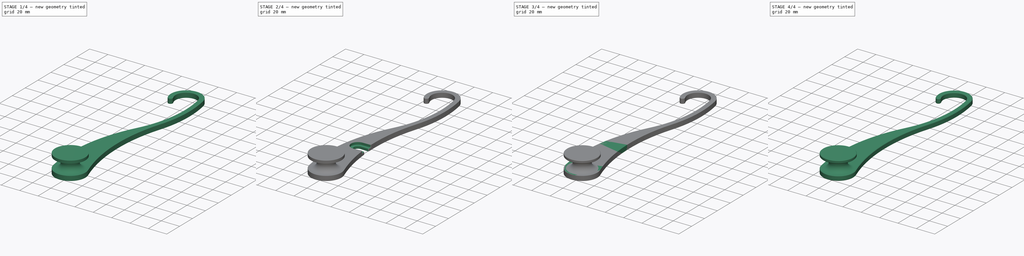
[diagram: build sequence overview — one tinted view per stage of 4, left to right]
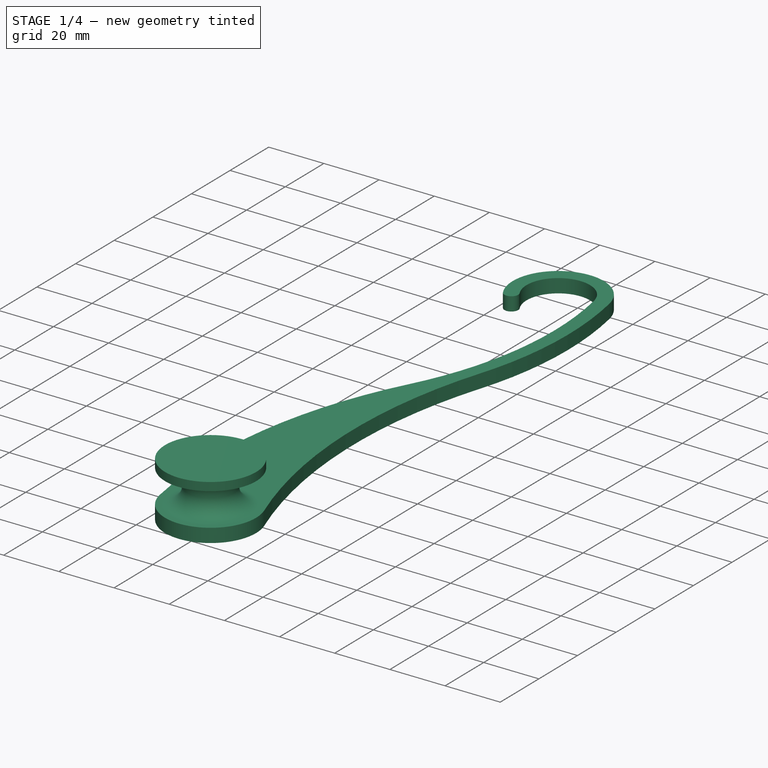
[diagram: stage 1 of 4 — iso view after this stage's code; geometry added in this stage tinted green]
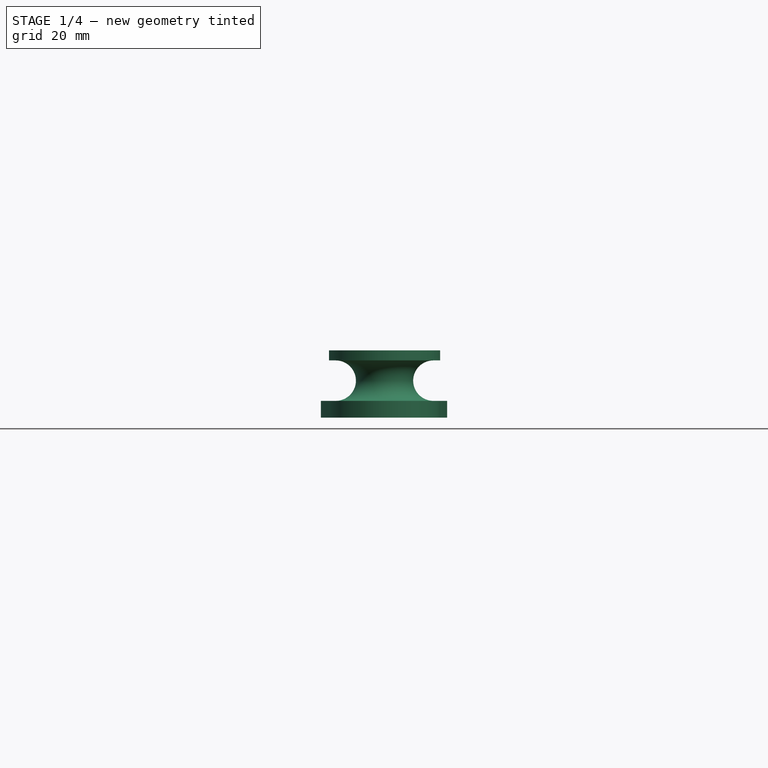
[diagram: stage 1 of 4 — front view after this stage's code; geometry added in this stage tinted green]
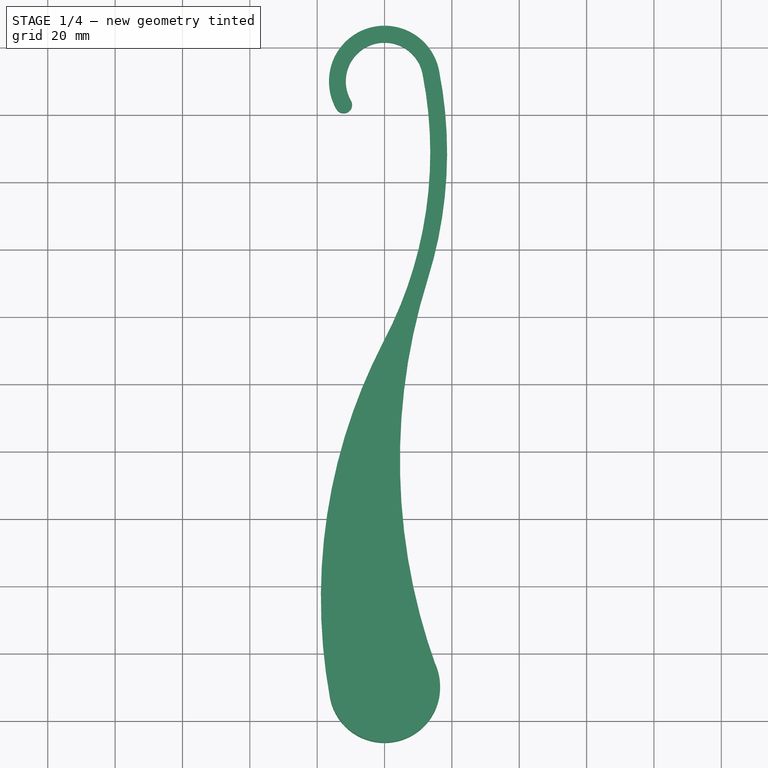
[diagram: stage 1 of 4 — top view after this stage's code; geometry added in this stage tinted green]
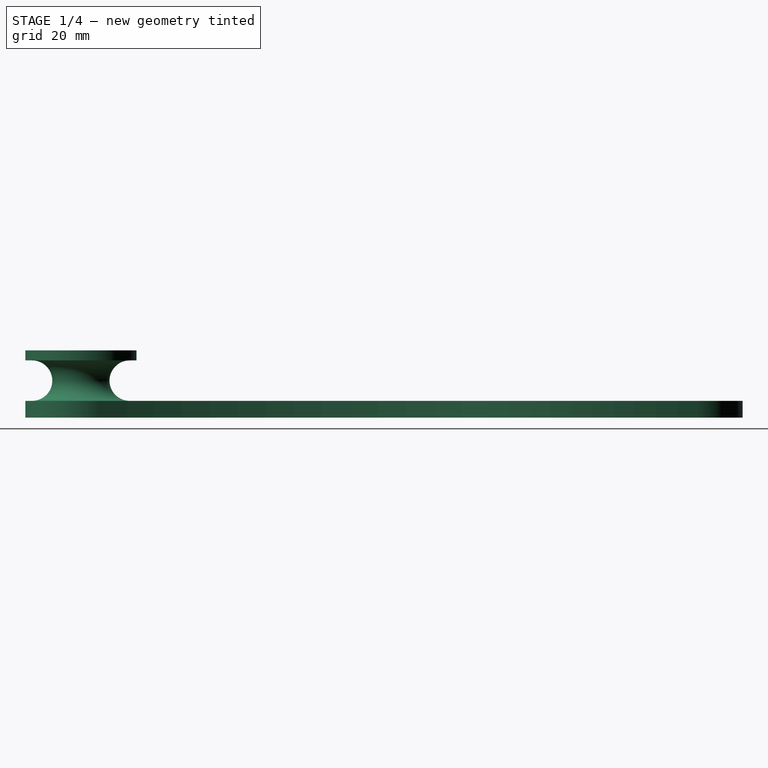
[diagram: stage 1 of 4 — right view after this stage's code; geometry added in this stage tinted green]
FCSTD DOCUMENT  (FreeCAD 1.1R38843 (Git))
Label: shower hanger
License: All rights reserved
LicenseURL: http://en.wikipedia.org/wiki/All_rights_reserved
objects: Sketcher::SketchObject×8, PartDesign::Pad×4, PartDesign::Groove×2, PartDesign::Chamfer×2, PartDesign::Body×2, PartDesign::Pocket×2, PartDesign::Fillet×1
note: 51 computed .brp shape members not serialized (recipe doc carries the construction recipe); baked Part::Feature solids carry a one-line shape summary decoded from their .brp

FEATURE [PartDesign::Body] Body  label="original"
  AllowCompound = false
  Group = -> [Sketch,Pad,Sketch001,Pad001,Sketch002,Groove,Chamfer]
  Origin = -> Origin
  Tip = -> Chamfer
FEATURE [Sketcher::SketchObject] Sketch003
  ArcFitTolerance = 1e-06
  AttachmentSupport = -> [XY_Plane001]
  FullyConstrained = true
  MakeInternals = false
  MapMode = 5
  sketch-geometry (12):
    g0: LineSegment [constr] StartX=0 StartY=90 StartZ=0 EndX=0 EndY=-90 EndZ=0
    g1: ArcOfCircle CenterX=0 CenterY=90 CenterZ=0 NormalX=0 NormalY=0 NormalZ=1 AngleXU=0 Radius=11.5 StartAngle=0.195596 EndAngle=3.66519
    g2: ArcOfCircle CenterX=0 CenterY=90 CenterZ=0 NormalX=0 NormalY=0 NormalZ=1 AngleXU=0 Radius=16.5 StartAngle=0.195596 EndAngle=3.66519
    g3: ArcOfCircle CenterX=-106.824 CenterY=68.835 CenterZ=0 NormalX=0 NormalY=0 NormalZ=1 AngleXU=0 Radius=120.401 StartAngle=5.80146 EndAngle=6.47878
    g4: ArcOfCircle CenterX=-106.824 CenterY=68.835 CenterZ=0 NormalX=0 NormalY=0 NormalZ=1 AngleXU=0 Radius=125.401 StartAngle=5.97919 EndAngle=6.47878
    g5: LineSegment [constr] StartX=0 StartY=90 StartZ=0 EndX=-14.2894 EndY=81.75 EndZ=0
    g6: LineSegment [constr] StartX=0 StartY=90 StartZ=0 EndX=16.1854 EndY=93.2068 EndZ=0
    g7: LineSegment [constr] StartX=-9.95929 StartY=84.25 StartZ=0 EndX=11.2807 EndY=92.235 EndZ=0
    g8: ArcOfCircle CenterX=-12.1244 CenterY=83 CenterZ=0 NormalX=0 NormalY=0 NormalZ=1 AngleXU=0 Radius=2.5 StartAngle=3.66519 EndAngle=6.80678
    g9: ArcOfCircle CenterX=146.097 CenterY=-63.3936 CenterZ=0 NormalX=0 NormalY=0 NormalZ=1 AngleXU=0 Radius=165 StartAngle=2.65987 EndAngle=3.32173
    g10: ArcOfCircle CenterX=184.573 CenterY=-22.583 CenterZ=0 NormalX=0 NormalY=0 NormalZ=1 AngleXU=0 Radius=180 StartAngle=2.83759 EndAngle=3.4918
    g11: ArcOfCircle CenterX=0 CenterY=-90 CenterZ=0 NormalX=0 NormalY=0 NormalZ=1 AngleXU=0 Radius=16.5 StartAngle=3.32173 EndAngle=6.63339
  constraints (29):
    c: DistanceY(g0,g0) = 180
    c: Diameter(g1) = 23
    c: Coincident(g1,g0)
    c: Coincident(g2,g0)
    c: Tangent(g1,g3) = -1.5708
    c: Tangent(g2,g4) = -1.5708
    c: Coincident(g5,g2)
    c: Coincident(g5,g0)
    c: Angle(g5,g0) = 1.0472
    c: Coincident(g6,g2)
    c: Coincident(g6,g0)
    c: Coincident(g7,g1)
    c: Coincident(g7,g1)
    c: Tangent(g8,g1) = 1.5708
    c: Tangent(g8,g2) = -1.5708
    c: Distance(g2,g1) = 5
    c: Coincident(g4,g3)
    c: Tangent(g9,g3) = 1.5708
    c: Tangent(g10,g4) = 1.5708
    c: Equal(g11,g2)
    c: Tangent(g11,g10) = 1.5708
    c: Tangent(g11,g9) = -1.5708
    c: Coincident(g11,g0)
    c: Symmetric(g0,g0,g-1)
    c: Diameter(g10) = 360
    c: Diameter(g9) = 330
    c: Distance(g3,g1) = 80
    c: Distance(g4,g2) = 62
    c: PointOnObject(g0,g-2)
FEATURE [PartDesign::Pad] Pad002
  Direction = (0,0,1)
  Length = 5
  Length2 = 10
  Profile = -> Sketch003
  ReferenceAxis = -> Sketch003 [N_Axis]
  Refine = true
  Suppressed = false
  Type = 0
FEATURE [Sketcher::SketchObject] Sketch004
  ArcFitTolerance = 1e-06
  AttachmentSupport = -> [Pad002]
  ExternalGeometry = -> [Pad002]
  FullyConstrained = true
  MakeInternals = false
  MapMode = 5
  Placement = pos=(0,0,5) rot=(0,0,1;0rad)
  sketch-geometry (1):
    g0: Circle CenterX=0 CenterY=-90 CenterZ=0 NormalX=0 NormalY=0 NormalZ=1 AngleXU=0 Radius=16.5
  constraints (2):
    c: Coincident(g0,g-3)
    c: PointOnObject(g-3,g0)
FEATURE [PartDesign::Pad] Pad003
  BaseFeature = -> Pad002
  Direction = (0,0,1)
  Length = 15
  Length2 = 10
  Profile = -> Sketch004
  ReferenceAxis = -> Sketch004 [N_Axis]
  Refine = true
  Suppressed = false
  Type = 0
FEATURE [Sketcher::SketchObject] Sketch005
  ArcFitTolerance = 1e-06
  AttachmentOffset = pos=(0,0,90) rot=(0,0,1;0rad)
  AttachmentSupport = -> [XZ_Plane001]
  ExternalGeometry = -> [Pad003]
  FullyConstrained = false
  MakeInternals = false
  MapMode = 5
  Placement = pos=(0,-90,2e-14) rot=(1,0,0;1.5708rad)
  sketch-geometry (6):
    g0: GeomPoint [constr] X=-16.5 Y=11 Z=0
    g1: GeomPoint [constr] X=-16.5 Y=5 Z=0
    g2: ArcOfCircle CenterX=-16.5 CenterY=11 CenterZ=0 NormalX=0 NormalY=0 NormalZ=1 AngleXU=0 Radius=6 StartAngle=1.5708 EndAngle=4.71239
    g3: ArcOfCircle CenterX=-14.5 CenterY=11 CenterZ=0 NormalX=0 NormalY=0 NormalZ=1 AngleXU=0 Radius=6 StartAngle=4.71239 EndAngle=7.85398
    g4: LineSegment StartX=-16.5 StartY=17 StartZ=0 EndX=-14.5 EndY=17 EndZ=0
    g5: LineSegment StartX=-16.5 StartY=5 StartZ=0 EndX=-14.5 EndY=5 EndZ=0
  constraints (12):
    c: Horizontal(g1,g-4)
    c: Vertical(g1,g-3)
    c: Vertical(g1,g0)
    c: Tangent(g2,g4) = 1.5708
    c: Tangent(g2,g5) = -1.5708
    c: Tangent(g3,g4) = 1.5708
    c: Tangent(g3,g5) = -1.5708
    c: Equal(g2,g3)
    c: Horizontal(g4)
    c: Diameter(g3) = 12
    c: DistanceX(g5,g5) = 2
    c: Coincident(g2,g1)
FEATURE [PartDesign::Groove] Groove001
  Angle = 360
  Angle2 = 60
  Axis = (0,2e-16,1)
  Base = (0,-90,2e-14)
  BaseFeature = -> Pad003
  Profile = -> Sketch005
  ReferenceAxis = -> Sketch005 [V_Axis]
  Refine = true
  Reversed = true
  Suppressed = false
  Type = 0
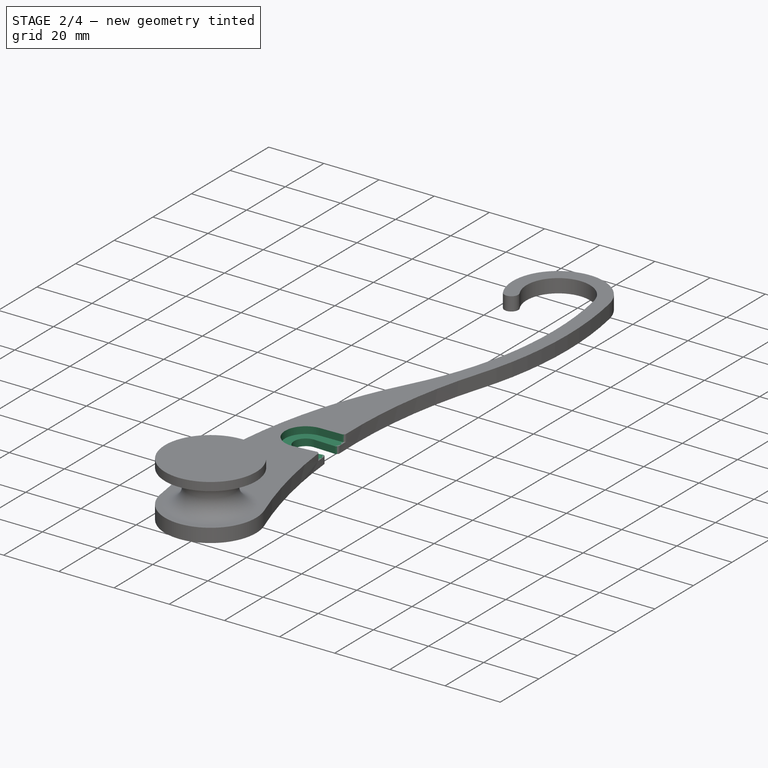
[diagram: stage 2 of 4 — iso view after this stage's code; geometry added in this stage tinted green]
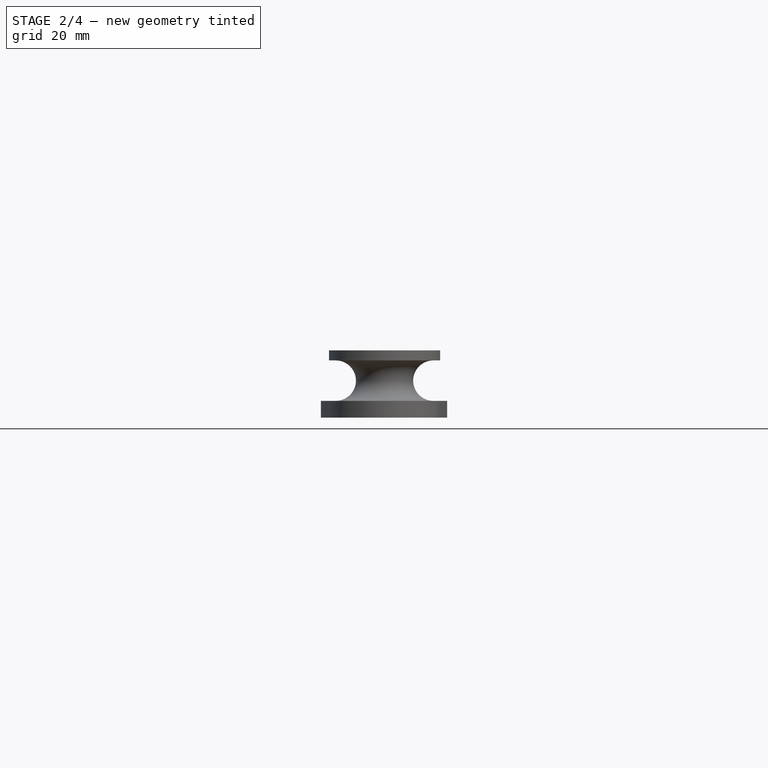
[diagram: stage 2 of 4 — front view after this stage's code; geometry added in this stage tinted green]
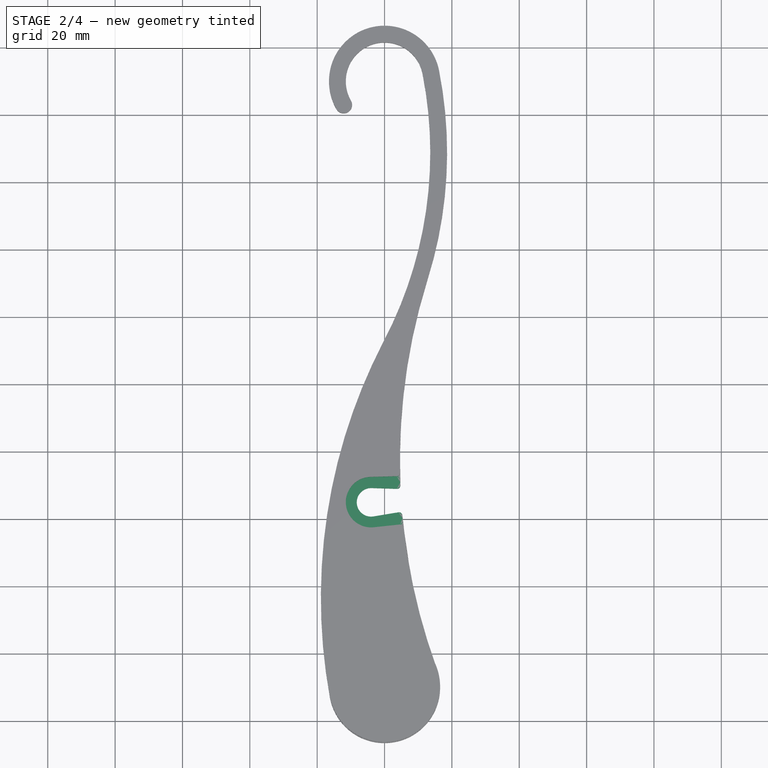
[diagram: stage 2 of 4 — top view after this stage's code; geometry added in this stage tinted green]
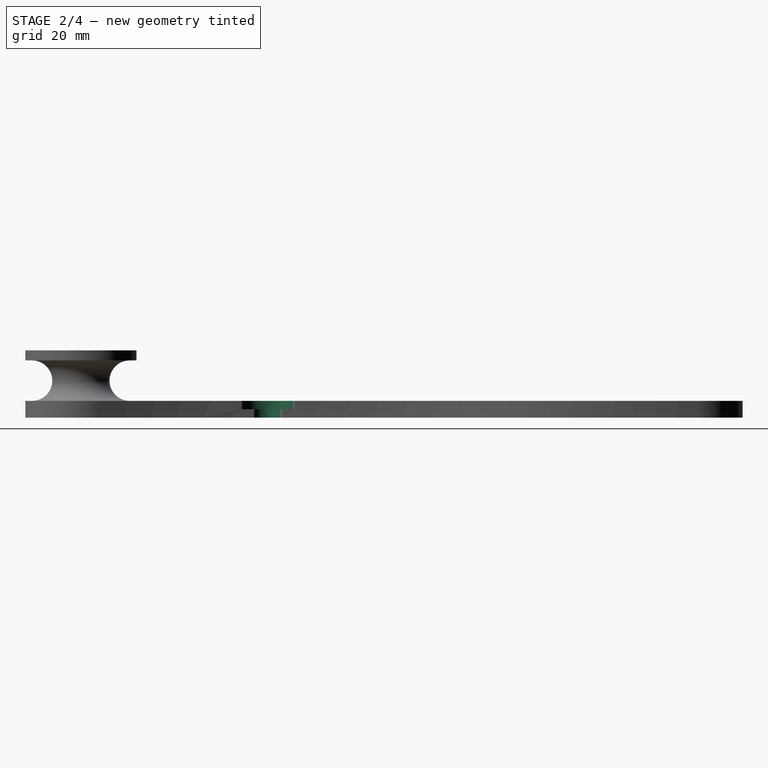
[diagram: stage 2 of 4 — right view after this stage's code; geometry added in this stage tinted green]
FEATURE [Sketcher::SketchObject] Sketch006
  ArcFitTolerance = 1e-06
  AttachmentSupport = -> [Groove001]
  ExternalGeometry = -> [Groove001]
  FullyConstrained = true
  MakeInternals = false
  MapMode = 5
  Placement = pos=(0,0,5) rot=(0,0,1;0rad)
  sketch-geometry (5):
    g0: ArcOfCircle CenterX=-4 CenterY=-35 CenterZ=0 NormalX=0 NormalY=0 NormalZ=1 AngleXU=0 Radius=7.5 StartAngle=1.59685 EndAngle=4.81784
    g1: ArcOfCircle CenterX=13.9753 CenterY=-33.8164 CenterZ=0 NormalX=0 NormalY=0 NormalZ=1 AngleXU=0 Radius=6.78508 StartAngle=4.81784 EndAngle=7.88004
    g2: LineSegment StartX=-4.19539 StartY=-27.5025 StartZ=0 EndX=13.7985 EndY=-27.0336 EndZ=0
    g3: LineSegment StartX=-3.2106 StartY=-42.4583 StartZ=0 EndX=14.6894 EndY=-40.5638 EndZ=0
    g4: ArcOfCircle [constr] CenterX=-4 CenterY=-35 CenterZ=0 NormalX=0 NormalY=0 NormalZ=1 AngleXU=0 Radius=7.5 StartAngle=4.81784 EndAngle=7.88004
  constraints (13):
    c: Tangent(g0,g2) = 1.5708
    c: Tangent(g0,g3) = -1.5708
    c: Tangent(g1,g2) = 1.5708
    c: Tangent(g1,g3) = -1.5708
    c: Radius(g0) = 7.5
    c: Perpendicular(g-4,g2)
    c: Perpendicular(g-4,g3)
    c: Distance(g3) = 18
    c: DistanceY(g0,g-1) = 35
    c: Coincident(g4,g0)
    c: Coincident(g4,g0)
    c: PointOnObject(g4,g3)
    c: DistanceX(g0,g-1) = 4
FEATURE [PartDesign::Pocket] Pocket
  BaseFeature = -> Groove001
  Direction = (0,0,-1)
  Length = 2.5
  Length2 = 5
  Profile = -> Sketch006
  ReferenceAxis = -> Sketch006 [N_Axis]
  Refine = true
  Suppressed = false
  Type = 0
FEATURE [Sketcher::SketchObject] Sketch007
  ArcFitTolerance = 1e-06
  AttachmentSupport = -> [Pocket]
  ExternalGeometry = -> [Pocket]
  FullyConstrained = true
  MakeInternals = false
  MapMode = 5
  Placement = pos=(0,0,2.5) rot=(0,0,1;0rad)
  sketch-geometry (5):
    g0: ArcOfCircle CenterX=-4 CenterY=-35 CenterZ=0 NormalX=0 NormalY=0 NormalZ=1 AngleXU=0 Radius=4.25 StartAngle=1.53963 EndAngle=4.87506
    g1: ArcOfCircle CenterX=14.0458 CenterY=-33.8117 CenterZ=0 NormalX=0 NormalY=0 NormalZ=1 AngleXU=0 Radius=2.5 StartAngle=4.87506 EndAngle=7.82282
    g2: LineSegment StartX=-3.86757 StartY=-30.7521 StartZ=0 EndX=14.1237 EndY=-31.3129 EndZ=0
    g3: LineSegment StartX=-3.3117 StartY=-39.1939 StartZ=0 EndX=14.4507 EndY=-36.2787 EndZ=0
    g4: LineSegment [constr] StartX=14.0458 StartY=-33.8117 StartZ=0 EndX=-4 EndY=-35 EndZ=0
  constraints (11):
    c: Tangent(g0,g2) = 1.5708
    c: Tangent(g0,g3) = -1.5708
    c: Tangent(g1,g2) = 1.5708
    c: Tangent(g1,g3) = -1.5708
    c: Coincident(g0,g-3)
    c: Diameter(g0) = 8.5
    c: Distance(g3) = 18
    c: Diameter(g1) = 5
    c: Coincident(g4,g1)
    c: Coincident(g4,g0)
    c: Perpendicular(g-4,g4)
FEATURE [PartDesign::Pocket] Pocket001
  BaseFeature = -> Pocket
  Direction = (0,0,-1)
  Length = 5
  Length2 = 5
  Profile = -> Sketch007
  ReferenceAxis = -> Sketch007 [N_Axis]
  Refine = true
  Suppressed = false
  Type = 0
FEATURE [PartDesign::Fillet] Fillet
  Base = -> Pocket001 [Edge36,Edge44,Edge38,Edge45]
  BaseFeature = -> Pocket001
  Radius = 1
  Refine = true
  SupportTransform = false
  Suppressed = false
  UseAllEdges = false
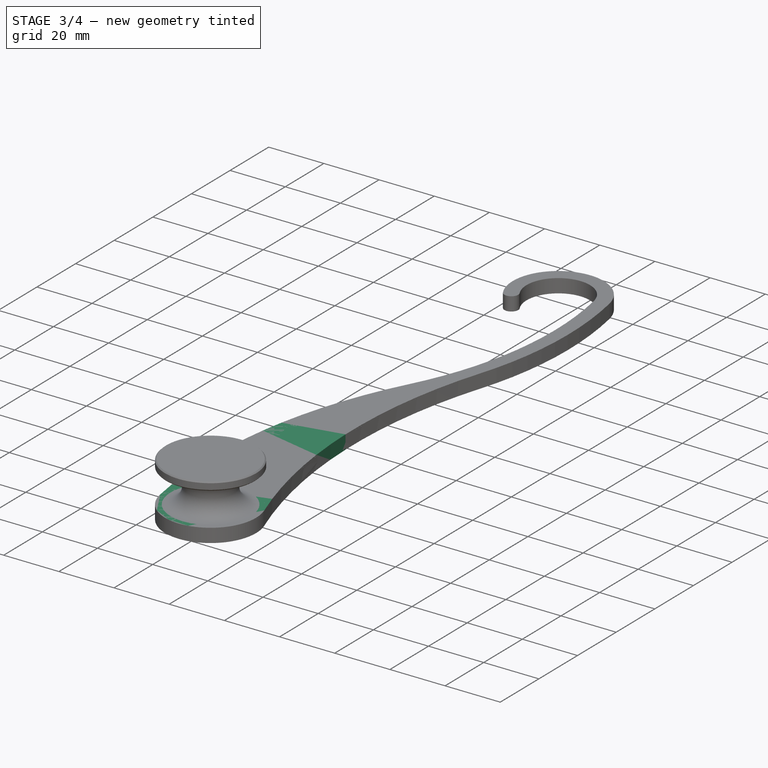
[diagram: stage 3 of 4 — iso view after this stage's code; geometry added in this stage tinted green]
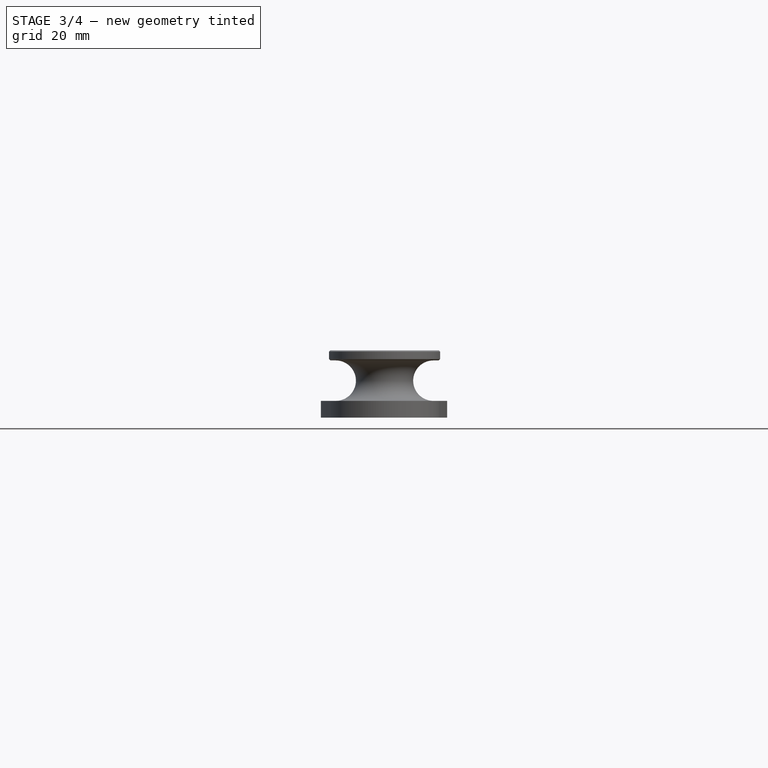
[diagram: stage 3 of 4 — front view after this stage's code; geometry added in this stage tinted green]
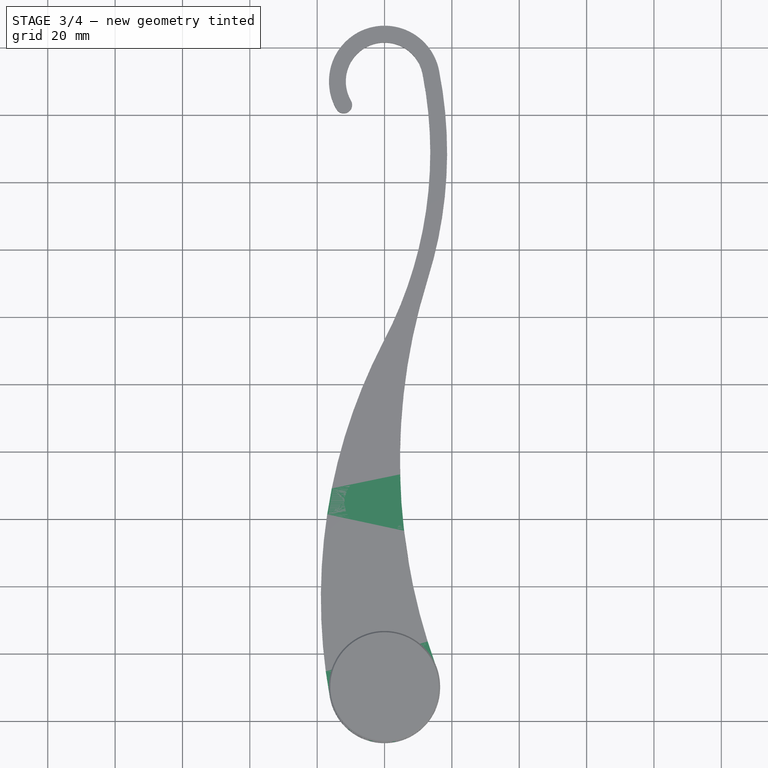
[diagram: stage 3 of 4 — top view after this stage's code; geometry added in this stage tinted green]
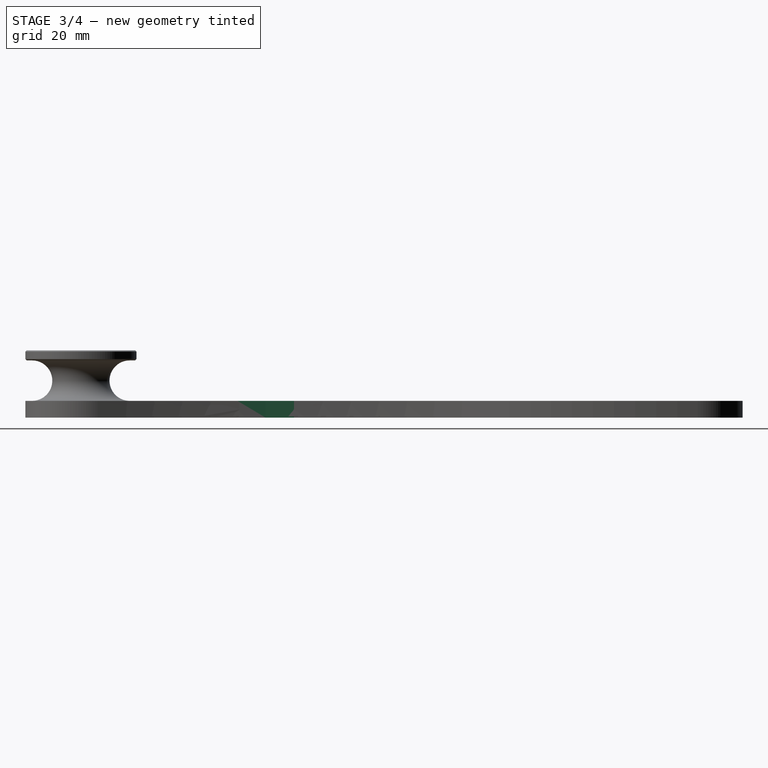
[diagram: stage 3 of 4 — right view after this stage's code; geometry added in this stage tinted green]
FEATURE [Sketcher::SketchObject] Sketch
  ArcFitTolerance = 1e-06
  AttachmentSupport = -> [XY_Plane]
  FullyConstrained = true
  MakeInternals = false
  MapMode = 5
  sketch-geometry (12):
    g0: LineSegment [constr] StartX=0 StartY=90 StartZ=0 EndX=0 EndY=-90 EndZ=0
    g1: ArcOfCircle CenterX=0 CenterY=90 CenterZ=0 NormalX=0 NormalY=0 NormalZ=1 AngleXU=0 Radius=11.5 StartAngle=0.195596 EndAngle=3.66519
    g2: ArcOfCircle CenterX=0 CenterY=90 CenterZ=0 NormalX=0 NormalY=0 NormalZ=1 AngleXU=0 Radius=16.5 StartAngle=0.195596 EndAngle=3.66519
    g3: ArcOfCircle CenterX=-106.824 CenterY=68.835 CenterZ=0 NormalX=0 NormalY=0 NormalZ=1 AngleXU=0 Radius=120.401 StartAngle=5.80146 EndAngle=6.47878
    g4: ArcOfCircle CenterX=-106.824 CenterY=68.835 CenterZ=0 NormalX=0 NormalY=0 NormalZ=1 AngleXU=0 Radius=125.401 StartAngle=5.97919 EndAngle=6.47878
    g5: LineSegment [constr] StartX=0 StartY=90 StartZ=0 EndX=-14.2894 EndY=81.75 EndZ=0
    g6: LineSegment [constr] StartX=0 StartY=90 StartZ=0 EndX=16.1854 EndY=93.2068 EndZ=0
    g7: LineSegment [constr] StartX=-9.95929 StartY=84.25 StartZ=0 EndX=11.2807 EndY=92.235 EndZ=0
    g8: ArcOfCircle CenterX=-12.1244 CenterY=83 CenterZ=0 NormalX=0 NormalY=0 NormalZ=1 AngleXU=0 Radius=2.5 StartAngle=3.66519 EndAngle=6.80678
    g9: ArcOfCircle CenterX=146.097 CenterY=-63.3936 CenterZ=0 NormalX=0 NormalY=0 NormalZ=1 AngleXU=0 Radius=165 StartAngle=2.65987 EndAngle=3.32173
    g10: ArcOfCircle CenterX=184.573 CenterY=-22.583 CenterZ=0 NormalX=0 NormalY=0 NormalZ=1 AngleXU=0 Radius=180 StartAngle=2.83759 EndAngle=3.4918
    g11: ArcOfCircle CenterX=0 CenterY=-90 CenterZ=0 NormalX=0 NormalY=0 NormalZ=1 AngleXU=0 Radius=16.5 StartAngle=3.32173 EndAngle=6.63339
  constraints (29):
    c: DistanceY(g0,g0) = 180
    c: Diameter(g1) = 23
    c: Coincident(g1,g0)
    c: Coincident(g2,g0)
    c: Tangent(g1,g3) = -1.5708
    c: Tangent(g2,g4) = -1.5708
    c: Coincident(g5,g2)
    c: Coincident(g5,g0)
    c: Angle(g5,g0) = 1.0472
    c: Coincident(g6,g2)
    c: Coincident(g6,g0)
    c: Coincident(g7,g1)
    c: Coincident(g7,g1)
    c: Tangent(g8,g1) = 1.5708
    c: Tangent(g8,g2) = -1.5708
    c: Distance(g2,g1) = 5
    c: Coincident(g4,g3)
    c: Tangent(g9,g3) = 1.5708
    c: Tangent(g10,g4) = 1.5708
    c: Equal(g11,g2)
    c: Tangent(g11,g10) = 1.5708
    c: Tangent(g11,g9) = -1.5708
    c: Coincident(g11,g0)
    c: Symmetric(g0,g0,g-1)
    c: Diameter(g10) = 360
    c: Diameter(g9) = 330
    c: Distance(g3,g1) = 80
    c: Distance(g4,g2) = 62
    c: PointOnObject(g0,g-2)
FEATURE [PartDesign::Pad] Pad
  Direction = (0,0,1)
  Length = 5
  Length2 = 10
  Profile = -> Sketch
  ReferenceAxis = -> Sketch [N_Axis]
  Refine = true
  Suppressed = false
  Type = 0
FEATURE [PartDesign::Chamfer] Chamfer001
  Angle = 45
  Base = -> Fillet [Face26,Face17,Face1,Edge71,Edge68]
  BaseFeature = -> Fillet
  ChamferType = 0
  FlipDirection = false
  Refine = true
  Size = 0.4
  Size2 = 1
  SupportTransform = false
  Suppressed = false
  UseAllEdges = false
FEATURE [PartDesign::Body] Body001  label="with suction cup"
  AllowCompound = false
  Group = -> [Sketch003,Pad002,Sketch004,Pad003,Sketch005,Groove001,Sketch006,Pocket,Sketch007,Pocket001,Fillet,Chamfer001]
  Origin = -> Origin001
  Tip = -> Chamfer001
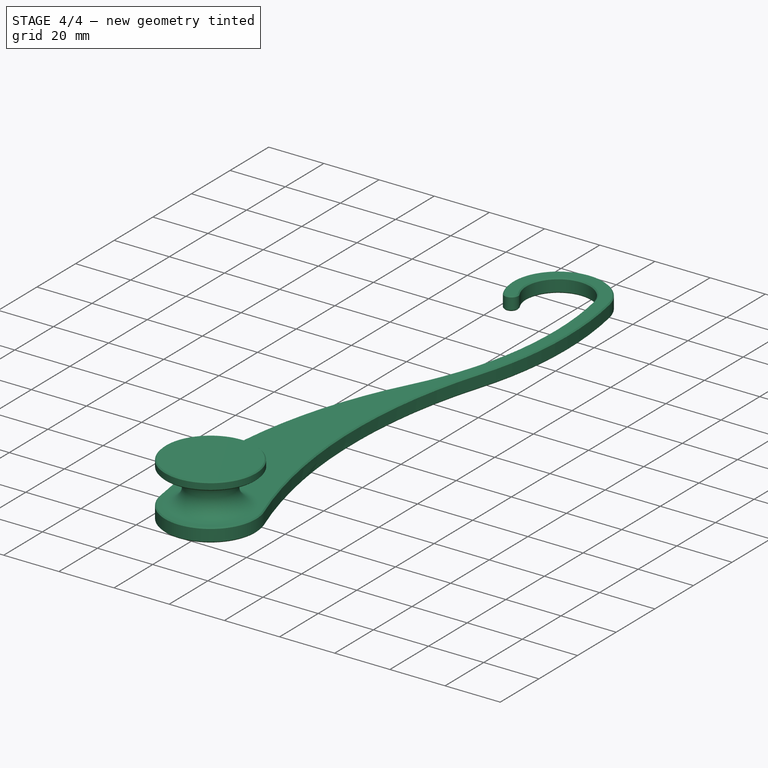
[diagram: stage 4 of 4 — iso view after this stage's code; geometry added in this stage tinted green]
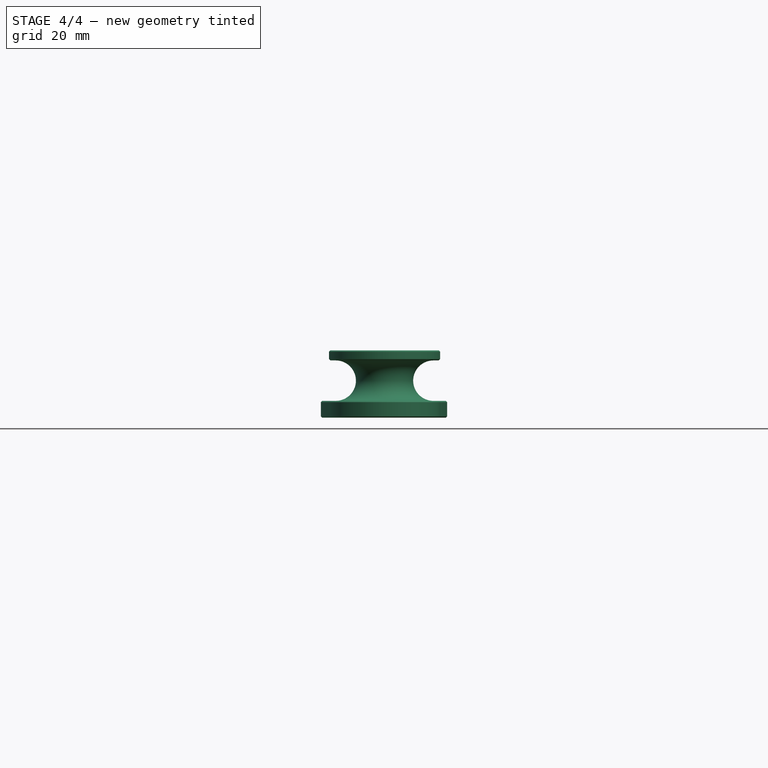
[diagram: stage 4 of 4 — front view after this stage's code; geometry added in this stage tinted green]
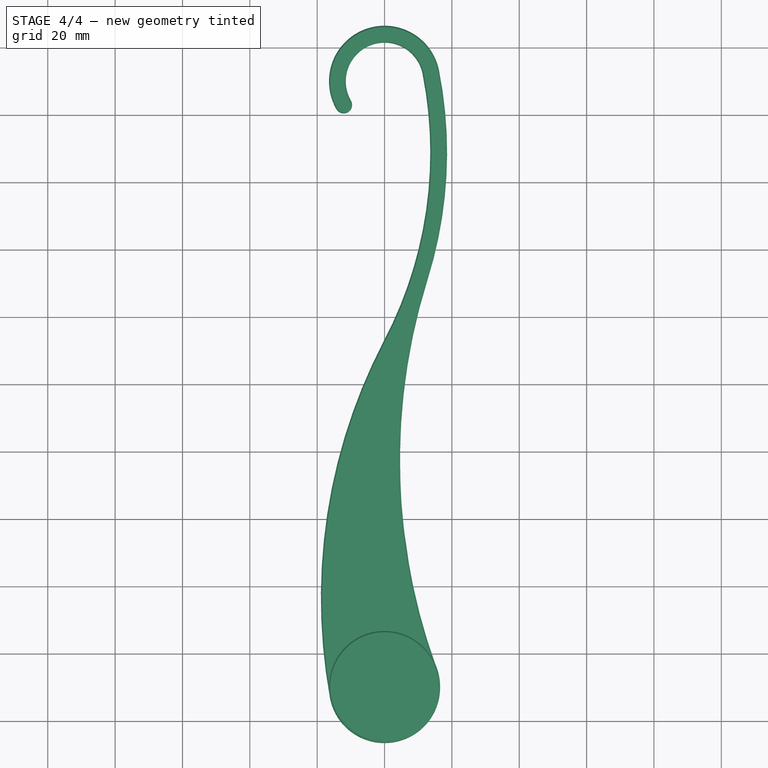
[diagram: stage 4 of 4 — top view after this stage's code; geometry added in this stage tinted green]
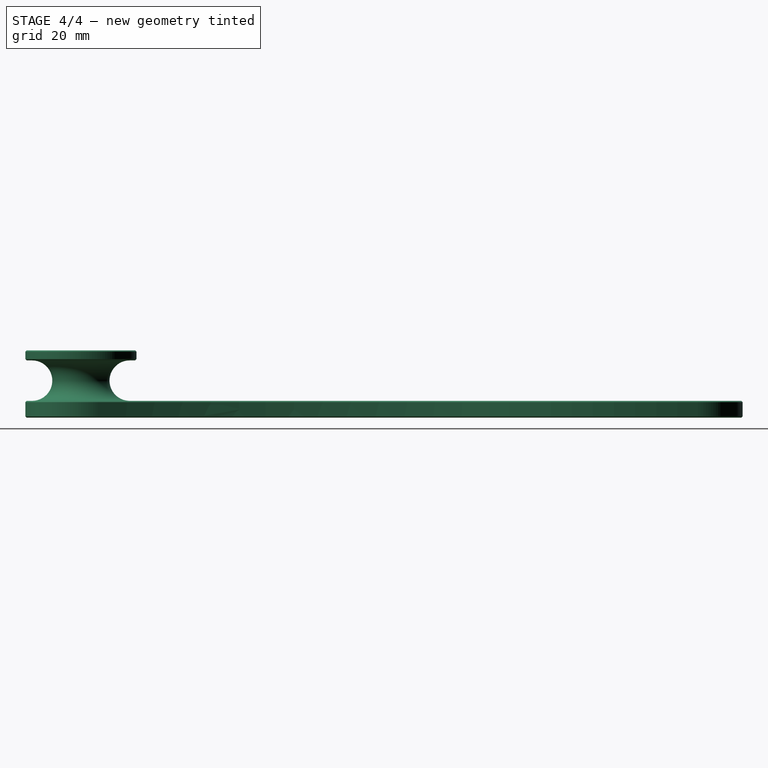
[diagram: stage 4 of 4 — right view after this stage's code; geometry added in this stage tinted green]
FEATURE [Sketcher::SketchObject] Sketch001
  ArcFitTolerance = 1e-06
  AttachmentSupport = -> [Pad]
  ExternalGeometry = -> [Pad]
  FullyConstrained = true
  MakeInternals = false
  MapMode = 5
  Placement = pos=(0,0,5) rot=(0,0,1;0rad)
  sketch-geometry (1):
    g0: Circle CenterX=0 CenterY=-90 CenterZ=0 NormalX=0 NormalY=0 NormalZ=1 AngleXU=0 Radius=16.5
  constraints (2):
    c: Coincident(g0,g-3)
    c: PointOnObject(g-3,g0)
FEATURE [PartDesign::Pad] Pad001
  BaseFeature = -> Pad
  Direction = (0,0,1)
  Length = 15
  Length2 = 10
  Profile = -> Sketch001
  ReferenceAxis = -> Sketch001 [N_Axis]
  Refine = true
  Suppressed = false
  Type = 0
FEATURE [Sketcher::SketchObject] Sketch002
  ArcFitTolerance = 1e-06
  AttachmentOffset = pos=(0,0,90) rot=(0,0,1;0rad)
  AttachmentSupport = -> [XZ_Plane]
  ExternalGeometry = -> [Pad001]
  FullyConstrained = false
  MakeInternals = false
  MapMode = 5
  Placement = pos=(0,-90,2e-14) rot=(1,0,0;1.5708rad)
  sketch-geometry (6):
    g0: GeomPoint [constr] X=-16.5 Y=11 Z=0
    g1: GeomPoint [constr] X=-16.5 Y=5 Z=0
    g2: ArcOfCircle CenterX=-16.5 CenterY=11 CenterZ=0 NormalX=0 NormalY=0 NormalZ=1 AngleXU=0 Radius=6 StartAngle=1.5708 EndAngle=4.71239
    g3: ArcOfCircle CenterX=-14.5 CenterY=11 CenterZ=0 NormalX=0 NormalY=0 NormalZ=1 AngleXU=0 Radius=6 StartAngle=4.71239 EndAngle=7.85398
    g4: LineSegment StartX=-16.5 StartY=17 StartZ=0 EndX=-14.5 EndY=17 EndZ=0
    g5: LineSegment StartX=-16.5 StartY=5 StartZ=0 EndX=-14.5 EndY=5 EndZ=0
  constraints (12):
    c: Horizontal(g1,g-4)
    c: Vertical(g1,g-3)
    c: Vertical(g1,g0)
    c: Tangent(g2,g4) = 1.5708
    c: Tangent(g2,g5) = -1.5708
    c: Tangent(g3,g4) = 1.5708
    c: Tangent(g3,g5) = -1.5708
    c: Equal(g2,g3)
    c: Horizontal(g4)
    c: Diameter(g3) = 12
    c: DistanceX(g5,g5) = 2
    c: Coincident(g2,g1)
FEATURE [PartDesign::Groove] Groove
  Angle = 360
  Angle2 = 60
  Axis = (0,2e-16,1)
  Base = (0,-90,2e-14)
  BaseFeature = -> Pad001
  Profile = -> Sketch002
  ReferenceAxis = -> Sketch002 [V_Axis]
  Refine = true
  Reversed = true
  Suppressed = false
  Type = 0
FEATURE [PartDesign::Chamfer] Chamfer
  Angle = 45
  Base = -> Groove [Face13,Face9,Edge30,Face4]
  BaseFeature = -> Groove
  ChamferType = 0
  FlipDirection = false
  Refine = true
  Size = 0.4
  Size2 = 1
  SupportTransform = false
  Suppressed = false
  UseAllEdges = false
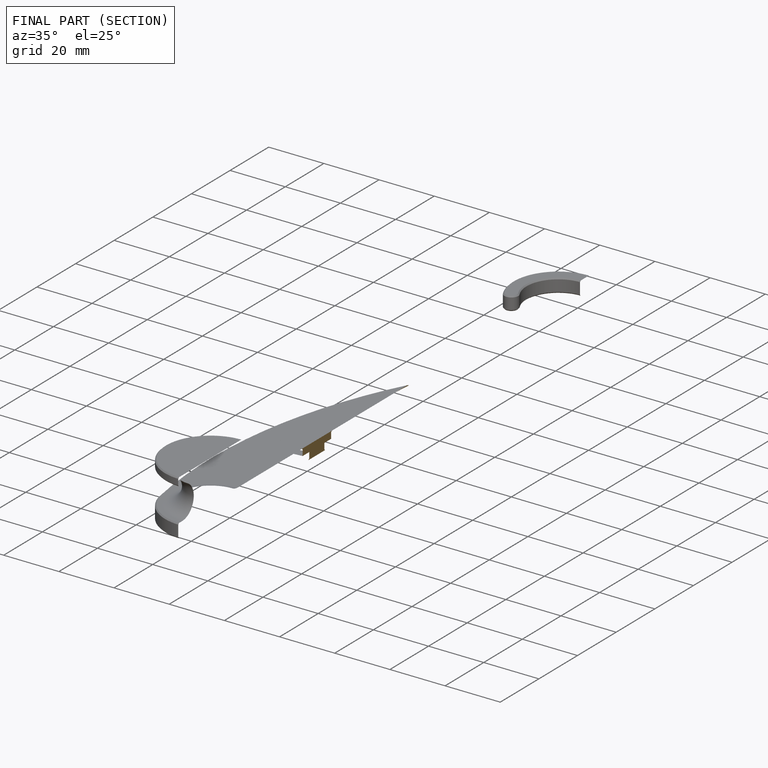
[diagram: finished part — half-section view (interior)]
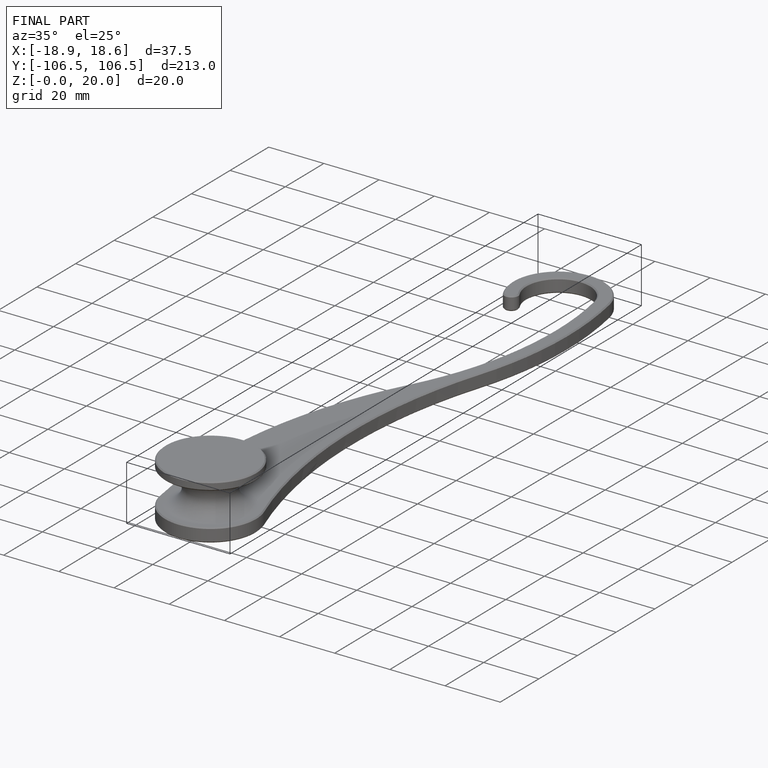
[diagram: finished part — iso view with bounding-box wireframe]
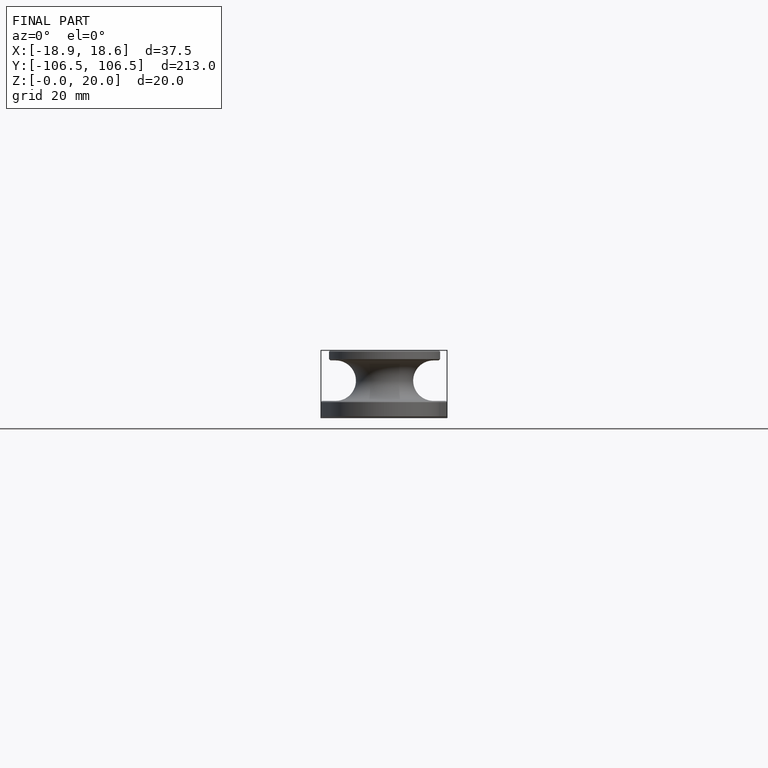
[diagram: finished part — front view with bounding-box wireframe]
